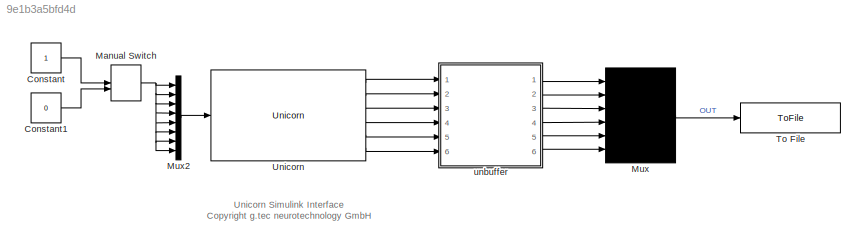
MODEL slx_9e1b3a5bfd4d
KIND model
CONFIG AbsTol = auto
CONFIG FixedStep = auto
CONFIG MaxStep = auto
CONFIG MinStep = auto
CONFIG RelTol = 1e-3
CONFIG SampleTimeConstraint = Unconstrained
CONFIG Solver = FixedStepDiscrete
CONFIG SolverMode = Auto
CONFIG SolverName = FixedStepDiscrete
CONFIG StartTime = 0.0
CONFIG StopTime = 10
BLOCK [Constant] Constant
  OutDataTypeStr = boolean
BLOCK [Constant] Constant1
  OutDataTypeStr = boolean
  Value = 0
BLOCK [ManualSwitch] Manual Switch
BLOCK [Mux] Mux
  AttributesFormatString = multiplex
  DisplayOption = bar
  Inputs = 6
  Ports = [6, 1]
BLOCK [Mux] Mux2
  DisplayOption = bar
  Inputs = 8
  Ports = [8, 1]
BLOCK [ToFile] To File
  Filename = Unicorn_Data.mat
  MatrixName = y
  Ports = [1]
BLOCK [Reference] Unicorn  REF=UnicornLib/Unicorn
  Ports = [1, 6]
  SourceBlock = UnicornLib/Unicorn
  SourceType = Unicorn
  frame_length = 1
  input_source = Electrode
  old_serial = UN-2018.11.94
  serial = UN-2018.11.94
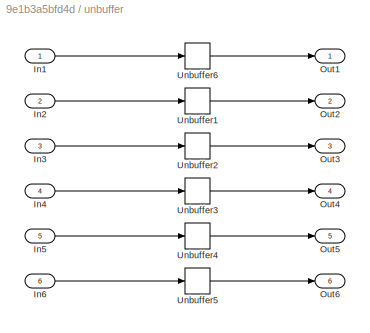
BLOCK [SubSystem] unbuffer 
  Ports = [6, 6]
  RequestExecContextInheritance = off
BLOCK [Inport] unbuffer /In1
  IconDisplay = Port number
BLOCK [Inport] unbuffer /In2
  IconDisplay = Port number
  Port = 2
BLOCK [Inport] unbuffer /In3
  IconDisplay = Port number
  Port = 3
BLOCK [Inport] unbuffer /In4
  IconDisplay = Port number
  Port = 4
BLOCK [Inport] unbuffer /In5
  IconDisplay = Port number
  Port = 5
BLOCK [Inport] unbuffer /In6
  IconDisplay = Port number
  Port = 6
BLOCK [Outport] unbuffer /Out1
  IconDisplay = Port number
BLOCK [Outport] unbuffer /Out2
  IconDisplay = Port number
  Port = 2
BLOCK [Outport] unbuffer /Out3
  IconDisplay = Port number
  Port = 3
BLOCK [Outport] unbuffer /Out4
  IconDisplay = Port number
  Port = 4
BLOCK [Outport] unbuffer /Out5
  IconDisplay = Port number
  Port = 5
BLOCK [Outport] unbuffer /Out6
  IconDisplay = Port number
  Port = 6
BLOCK [Unbuffer] unbuffer /Unbuffer1
  Ports = [1, 1]
BLOCK [Unbuffer] unbuffer /Unbuffer2
  Ports = [1, 1]
BLOCK [Unbuffer] unbuffer /Unbuffer3
  Ports = [1, 1]
BLOCK [Unbuffer] unbuffer /Unbuffer4
  Ports = [1, 1]
BLOCK [Unbuffer] unbuffer /Unbuffer5
  Ports = [1, 1]
BLOCK [Unbuffer] unbuffer /Unbuffer6
  Ports = [1, 1]
ANNOTATION (root): Unicorn Simulink Interface <copyright redacted>
LINE Constant1:1 -> Manual Switch:2
LINE Constant:1 -> Manual Switch:1
NET Manual Switch:1 -> Mux2:1, Mux2:2, Mux2:3, Mux2:4, Mux2:5, Mux2:6, Mux2:7, Mux2:8
LINE Mux2:1 -> Unicorn:1
LINE Mux:1 -> To File:1
LINE Unicorn:1 -> unbuffer :1
LINE Unicorn:2 -> unbuffer :2
LINE Unicorn:3 -> unbuffer :3
LINE Unicorn:4 -> unbuffer :4
LINE Unicorn:5 -> unbuffer :5
LINE Unicorn:6 -> unbuffer :6
LINE unbuffer /In1:1 -> unbuffer /Unbuffer6:1
LINE unbuffer /In2:1 -> unbuffer /Unbuffer1:1
LINE unbuffer /In3:1 -> unbuffer /Unbuffer2:1
LINE unbuffer /In4:1 -> unbuffer /Unbuffer3:1
LINE unbuffer /In5:1 -> unbuffer /Unbuffer4:1
LINE unbuffer /In6:1 -> unbuffer /Unbuffer5:1
LINE unbuffer /Unbuffer1:1 -> unbuffer /Out2:1
LINE unbuffer /Unbuffer2:1 -> unbuffer /Out3:1
LINE unbuffer /Unbuffer3:1 -> unbuffer /Out4:1
LINE unbuffer /Unbuffer4:1 -> unbuffer /Out5:1
LINE unbuffer /Unbuffer5:1 -> unbuffer /Out6:1
LINE unbuffer /Unbuffer6:1 -> unbuffer /Out1:1
LINE unbuffer :1 -> Mux:1
LINE unbuffer :2 -> Mux:2
LINE unbuffer :3 -> Mux:3
LINE unbuffer :4 -> Mux:4
LINE unbuffer :5 -> Mux:5
LINE unbuffer :6 -> Mux:6
note: NET lines group one-source signal fan-out (src -> all destinations, sorted); 1:1 wires keep LINE
